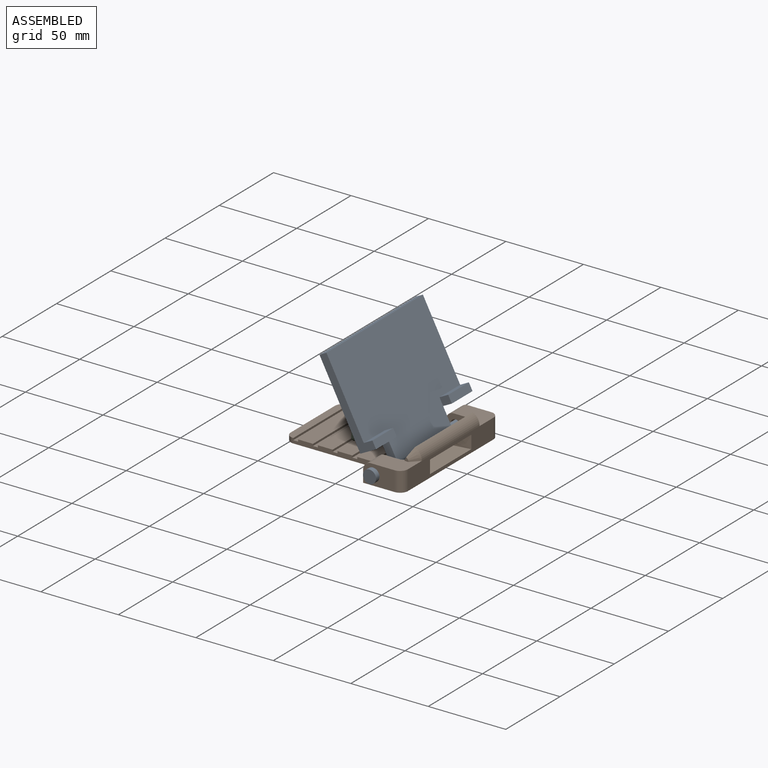
[diagram: assembled view]
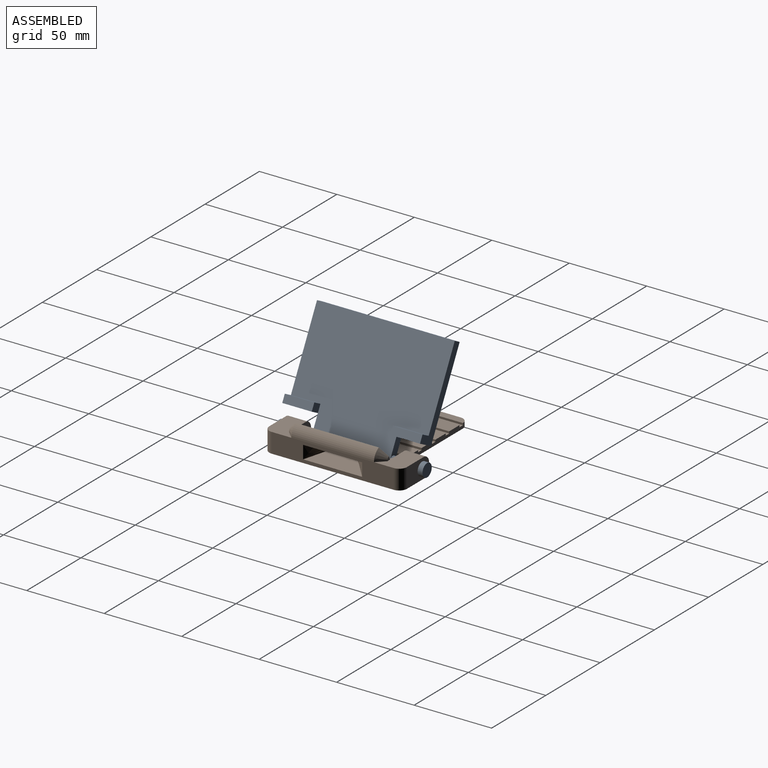
[diagram: assembled view, second angle]
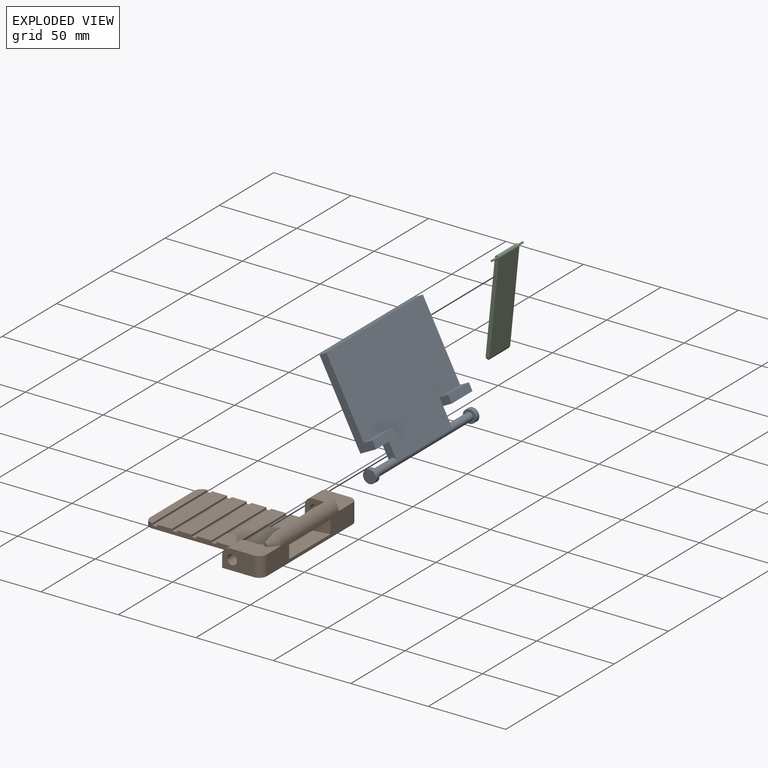
[diagram: exploded view]
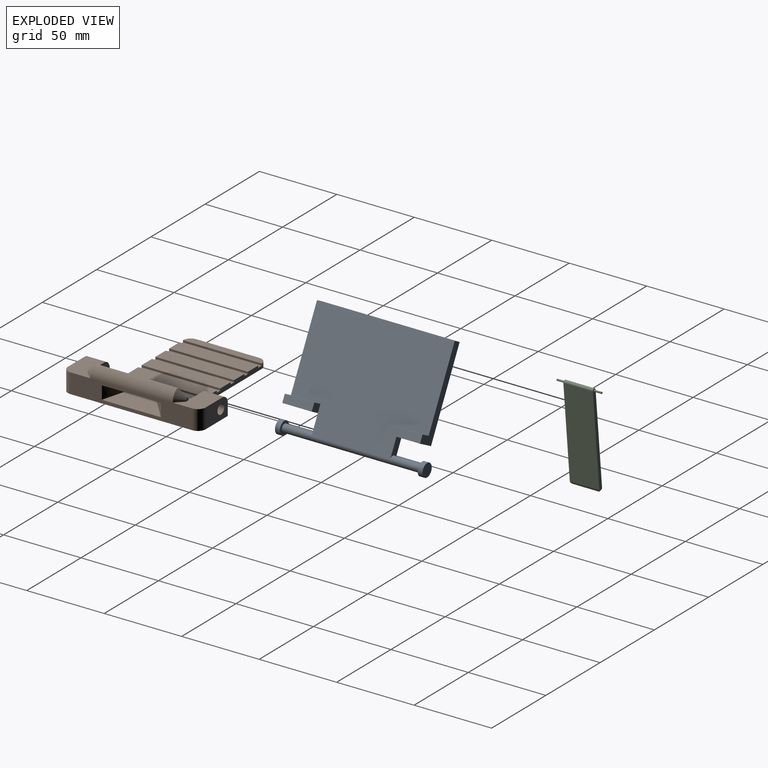
[diagram: exploded view, second angle]
ASSEMBLY  parts=3 mates=2
PART A: 31 faces, bbox 74.1x95.3x13.1 mm
  f0: plane 88.9x69.85mm, normal (0,0,1), area 5532.2mm2, adj f1,f2,f4,f5,f15,f17,f19,f20
  f1: plane 12.7x5.08mm, normal (0,1,0), area 54.4mm2, adj f0,f3,f4,f18
  f2: plane 12.7x5.08mm, normal (0,-1,0), area 54.4mm2, adj f0,f3,f4,f16
  f3: plane 88.9x69.85mm, normal (0,0,-1), area 4516.1mm2, adj f1,f2,f4,f5,f6,f7,f8,f9
  f4: cylinder r=2.54mm len=88.9mm, axis (0,1,0), area 1013.4mm2, adj f0,f1,f2,f3,f27,f30
  f5: plane 88.9x5.08mm, normal (-1,0,0), area 451.6mm2, adj f0,f3,f15,f17
  f6: plane 63.5x2.54mm, normal (0,-1,0), area 160mm2, adj f3,f7,f9,f10,f11
  f7: plane 19.05x2.54mm, normal (-1,0,0), area 48.4mm2, adj f3,f6,f8,f10
  f8: plane 63.5x2.54mm, normal (0,1,0), area 160mm2, adj f3,f7,f9,f10,f13
  f9: plane 19.05x2.54mm, normal (1,0,0), area 48.4mm2, adj f3,f6,f8,f10
  f10: plane 63.5x19.05mm, normal (0,0,-1), area 1209.7mm2, adj f6,f7,f8,f9
  f11: cylinder r=0.64mm len=6.35mm, axis (0,-1,0), area 25.3mm2, adj f6,f12
  f12: plane 1.27x1.27mm, normal (0,-1,0), area 1.3mm2, adj f11
  f13: cylinder r=0.64mm len=6.35mm, axis (0,1,0), area 25.3mm2, adj f8,f14
  f14: plane 1.27x1.27mm, normal (0,1,0), area 1.3mm2, adj f13
  f15: plane 57.15x11.43mm, normal (0,-1,0), area 322.6mm2, adj f0,f3,f5,f16,f23,f24
  f16: plane 19.05x11.43mm, normal (1,0,0), area 217.7mm2, adj f2,f3,f15,f22,f24
  f17: plane 57.15x11.43mm, normal (0,1,0), area 322.6mm2, adj f0,f3,f5,f18,f19,f21
  f18: plane 19.05x11.43mm, normal (1,0,0), area 217.7mm2, adj f1,f3,f17,f20,f21
  f19: plane 19.05x6.35mm, normal (-1,0,0), area 121mm2, adj f0,f17,f20,f21
  f20: plane 6.35x5.08mm, normal (0,-1,0), area 32.3mm2, adj f0,f18,f19,f21
  f21: plane 19.05x5.08mm, normal (0,0,1), area 96.8mm2, adj f17,f18,f19,f20
  f22: plane 6.35x5.08mm, normal (0,1,0), area 32.3mm2, adj f0,f16,f23,f24
  f23: plane 19.05x6.35mm, normal (-1,0,0), area 121mm2, adj f0,f15,f22,f24
  f24: plane 19.05x5.08mm, normal (0,0,1), area 96.8mm2, adj f15,f16,f22,f23
  f25: cylinder r=4.23mm len=8.47mm, axis (0,1,0), area 84.5mm2, adj f26,f27
  f26: plane 8.47x8.47mm, normal (0,-1,0), area 56.3mm2, adj f25
  f27: plane 8.47x8.47mm, normal (0,1,0), area 36mm2, adj f4,f25
  f28: cylinder r=4.23mm len=8.47mm, axis (0,-1,0), area 84.5mm2, adj f29,f30
  f29: plane 8.47x8.47mm, normal (0,1,0), area 56.3mm2, adj f28
  f30: plane 8.47x8.47mm, normal (0,-1,0), area 36mm2, adj f4,f28
PART B: 57 faces, bbox 88.9x88.9x19.6 mm
  f0: plane 22.86x5.08mm, normal (-0.71,0,0.71), area 164.2mm2, adj f8,f46,f53,f55
  f1: plane 20.32x17.78mm, normal (0,0,1), area 267.4mm2, adj f10,f11,f13,f24,f43,f46,f47,f50
  f2: plane 50.8x5.08mm, normal (0,0,1), area 247mm2, adj f22,f26,f27,f40
  f3: plane 50.8x9.53mm, normal (0,0,1), area 483.9mm2, adj f7,f21,f38,f41
  f4: plane 50.8x9.53mm, normal (0,0,1), area 483.9mm2, adj f7,f21,f35,f37
  f5: plane 50.8x9.53mm, normal (0,0,1), area 483.9mm2, adj f7,f21,f32,f34
  f6: plane 50.8x9.53mm, normal (0,0,1), area 483.9mm2, adj f7,f21,f29,f31
  f7: plane 71.12x3.18mm, normal (0,-1,0), area 205.6mm2, adj f3,f4,f5,f6,f8,f17,f20,f27
  f8: plane 63.5x11.21mm, normal (-1,0,0), area 326.5mm2, adj f0,f7,f13,f14,f17,f20,f21,f23
  f9: plane 20.32x12.7mm, normal (0,-1,0), area 220.9mm2, adj f15,f16,f17,f18,f25,f49
  f10: plane 78.74x12.7mm, normal (1,0,0), area 677.4mm2, adj f1,f16,f17,f45,f49,f50,f51,f52
  f11: plane 20.32x12.7mm, normal (0,1,0), area 220.9mm2, adj f1,f12,f17,f19,f24,f50
  f12: plane 12.7x7.62mm, normal (-1,0,0), area 96.8mm2, adj f11,f13,f17,f24
  f13: plane 14.19x12.7mm, normal (0,-1,0), area 125.2mm2, adj f1,f8,f12,f17,f19,f24,f56
  f14: plane 14.19x12.7mm, normal (0,1,0), area 125.2mm2, adj f8,f15,f16,f17,f18,f25,f55
  f15: plane 12.7x7.62mm, normal (-1,0,0), area 96.8mm2, adj f9,f14,f17,f25
  f16: plane 20.32x17.78mm, normal (0,0,1), area 267.4mm2, adj f9,f10,f14,f25,f44,f46,f48,f49
  f17: plane 88.9x88.9mm, normal (0,0,-1), area 5300.4mm2, adj f7,f8,f9,f10,f11,f12,f13,f14
  f18: cylinder r=3.17mm len=12.7mm, axis (0,-1,0), area 253.4mm2, adj f9,f14
  f19: cylinder r=3.17mm len=12.7mm, axis (0,-1,0), area 253.4mm2, adj f11,f13
  f20: plane 50.8x17.15mm, normal (0,0,1), area 871mm2, adj f7,f8,f21,f28
  f21: plane 71.12x3.18mm, normal (0,1,0), area 205.6mm2, adj f3,f4,f5,f6,f8,f17,f20,f26
  f22: plane 40.64x3.18mm, normal (-1,0,0), area 129mm2, adj f2,f17,f26,f27
  f23: plane 22.86x5.08mm, normal (-0.71,0,0.71), area 164.2mm2, adj f8,f46,f51,f56
  f24: cylinder r=5.08mm len=12.7mm, axis (0,1,0), area 101.3mm2, adj f1,f11,f12,f13
  f25: cylinder r=5.08mm len=12.7mm, axis (0,1,0), area 101.3mm2, adj f9,f14,f15,f16
  f26: cylinder r=5.08mm len=5.08mm, axis (0,0,1), area 25.3mm2, adj f2,f17,f21,f22,f40
  f27: cylinder r=5.08mm len=5.08mm, axis (0,0,-1), area 25.3mm2, adj f2,f7,f17,f22,f40
  f28: plane 50.8x1.27mm, normal (-1,0,0), area 64.5mm2, adj f7,f20,f21,f30
  f29: plane 50.8x1.27mm, normal (1,0,0), area 64.5mm2, adj f6,f7,f21,f30
  f30: plane 50.8x3.18mm, normal (0,0,1), area 161.3mm2, adj f7,f21,f28,f29
  f31: plane 50.8x1.27mm, normal (-1,0,0), area 64.5mm2, adj f6,f7,f21,f33
  f32: plane 50.8x1.27mm, normal (1,0,0), area 64.5mm2, adj f5,f7,f21,f33
  f33: plane 50.8x3.18mm, normal (0,0,1), area 161.3mm2, adj f7,f21,f31,f32
  f34: plane 50.8x1.27mm, normal (-1,0,0), area 64.5mm2, adj f5,f7,f21,f36
  f35: plane 50.8x1.27mm, normal (1,0,0), area 64.5mm2, adj f4,f7,f21,f36
  f36: plane 50.8x3.18mm, normal (0,0,1), area 161.3mm2, adj f7,f21,f34,f35
  f37: plane 50.8x1.27mm, normal (-1,0,0), area 64.5mm2, adj f4,f7,f21,f39
  f38: plane 50.8x1.27mm, normal (1,0,0), area 64.5mm2, adj f3,f7,f21,f39
  f39: plane 50.8x3.18mm, normal (0,0,1), area 161.3mm2, adj f7,f21,f37,f38
  f40: plane 50.8x1.27mm, normal (1,0,0), area 64.5mm2, adj f2,f26,f27,f42
  f41: plane 50.8x1.27mm, normal (-1,0,0), area 64.5mm2, adj f3,f7,f21,f42
  f42: plane 50.8x3.18mm, normal (0,0,1), area 161.3mm2, adj f7,f21,f40,f41
  f43: plane 2.54x2.3mm, normal (0,1,0), area 3.7mm2, adj f1,f46,f47
  f44: plane 2.54x2.3mm, normal (0,-1,0), area 3.7mm2, adj f16,f46,f48
  f45: cylinder r=7.62mm len=53.34mm, axis (0,1,0), area 461.1mm2, adj f10,f46,f47,f48
  f46: plane 63.5x6.91mm, normal (-0.91,0,0.42), area 458.1mm2, adj f0,f1,f16,f23,f43,f44,f45,f47
  f47: cone r=2.54mm half-angle=45deg, axis (0,-1,0), area 41.4mm2, adj f1,f43,f45,f46
  f48: cone r=7.62mm half-angle=45deg, axis (0,1,0), area 41.4mm2, adj f16,f44,f45,f46
  f49: cylinder r=5.08mm len=12.7mm, axis (0,0,1), area 101.3mm2, adj f9,f10,f16,f17
  f50: cylinder r=5.08mm len=12.7mm, axis (0,0,1), area 101.3mm2, adj f1,f10,f11,f17
  f51: bspline ~12.7x12.7mm, area 123.2mm2, adj f10,f23,f52,f54
  f52: plane 38.1x12.7mm, normal (0.4,0,0.92), area 351.6mm2, adj f8,f10,f51,f53
  f53: bspline ~12.7x12.7mm, area 123.2mm2, adj f0,f10,f52,f54
  f54: plane 38.1x7.62mm, normal (-0.27,0,-0.96), area 200.9mm2, adj f10,f46,f51,f53
  f55: cylinder r=2.54mm len=6.88mm, axis (-0.71,0,-0.71), area 21.3mm2, adj f0,f8,f14,f16
  f56: cylinder r=2.54mm len=6.88mm, axis (0.71,0,0.71), area 21.3mm2, adj f1,f8,f13,f23
PART C: 13 faces, bbox 63.2x29x2.5 mm
  f0: cylinder r=2.54mm len=19.05mm, axis (0,-1,0), area 48.3mm2, adj f1,f2,f3,f6
  f1: cylinder r=2.54mm len=2.54mm, axis (0,0,1), area 4.4mm2, adj f0,f3,f7
  f2: cylinder r=2.54mm len=2.54mm, axis (0,0,-1), area 4.4mm2, adj f0,f3,f4
  f3: cylinder r=2.54mm len=19.05mm, axis (0,1,0), area 48.3mm2, adj f0,f1,f2,f5
  f4: plane 60.96x2.54mm, normal (0,1,0), area 153.1mm2, adj f2,f5,f6,f8,f11
  f5: plane 59.69x19.05mm, normal (0,0,-1), area 1137.1mm2, adj f3,f4,f7,f8
  f6: plane 59.69x19.05mm, normal (0,0,1), area 1137.1mm2, adj f0,f4,f7,f8
  f7: plane 60.96x2.54mm, normal (0,-1,0), area 153.1mm2, adj f1,f5,f6,f8,f9
  f8: cylinder r=1.27mm len=19.05mm, axis (0,-1,0), area 76mm2, adj f4,f5,f6,f7
  f9: cylinder r=0.57mm len=4.95mm, axis (0,1,0), area 17.8mm2, adj f7,f10
  f10: plane 1.14x1.14mm, normal (0,-1,0), area 1mm2, adj f9
  f11: cylinder r=0.57mm len=4.95mm, axis (0,-1,0), area 17.8mm2, adj f4,f12
  f12: plane 1.14x1.14mm, normal (0,1,0), area 1mm2, adj f11
PLACE A rot(axis=(0,1,0),62.5deg) t=(-11.65,0,54.11)mm
PLACE B t=(-36.77,0,0)mm
PLACE C rot(axis=(0,1,0),95.7deg) t=(-16.84,0,56.07)mm
MATE revolute C.f8 <-> A.f11  axis (0,-1,0) through (-10.96,-9.52,63.77)mm
MATE revolute B.f18 <-> A.f28  axis (0,-1,0) through (20.38,-44.45,6.35)mm
